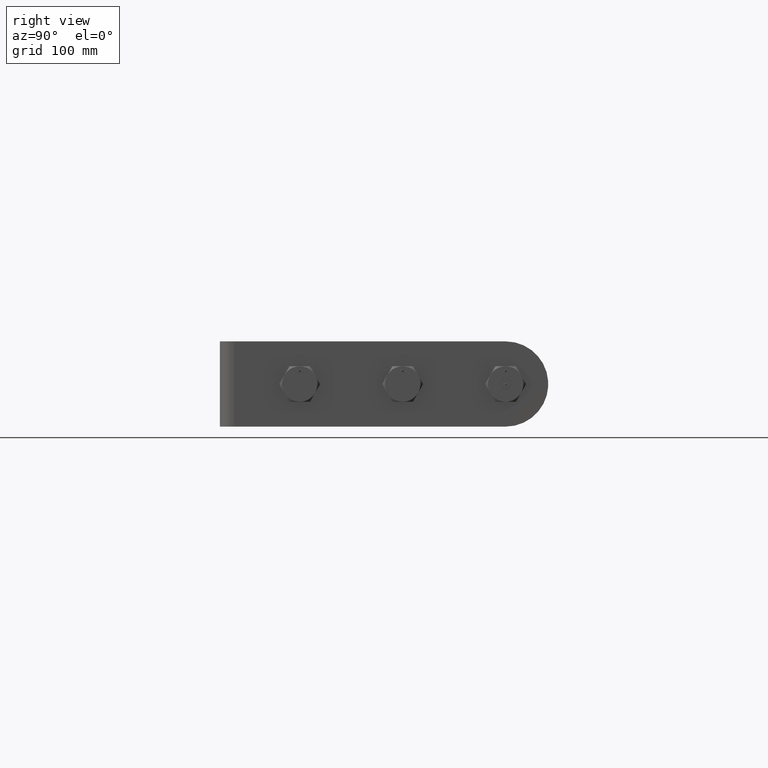
[diagram: clean part render]
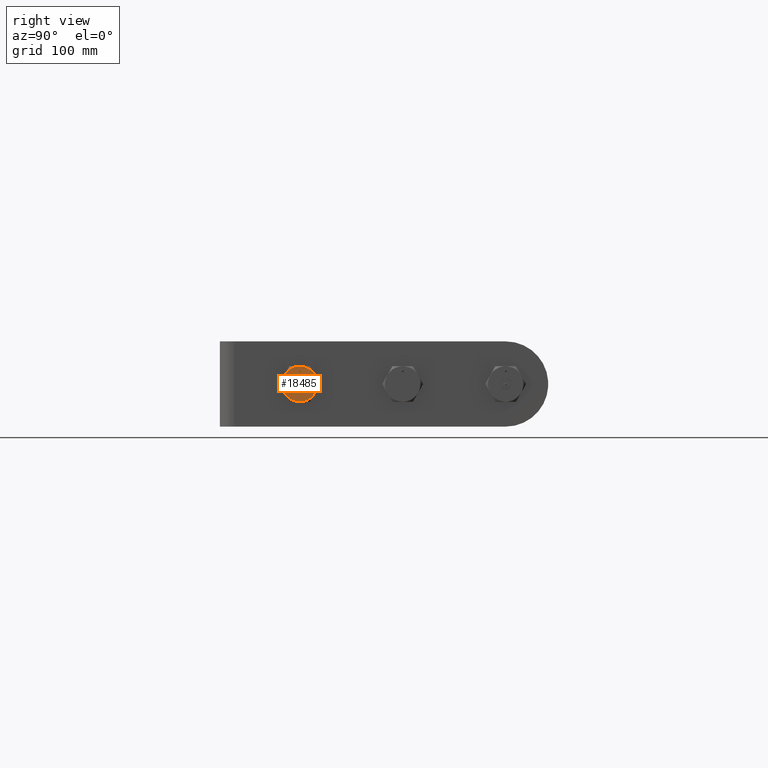
[diagram: same view with one face highlighted and labeled with its STEP entity id]
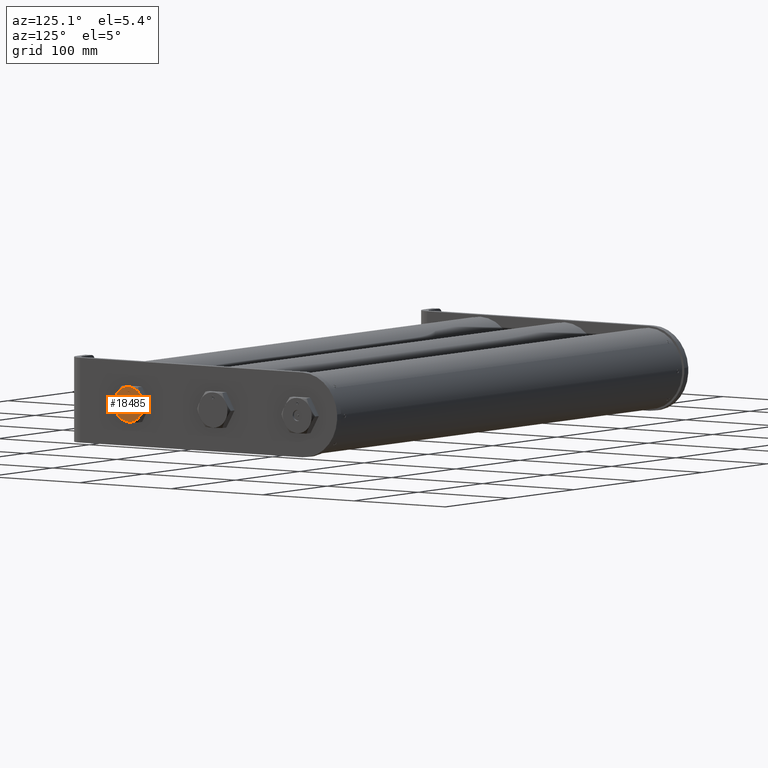
[diagram: same view with one face highlighted and labeled with its STEP entity id]
A machine part, right view. The second image highlights one B-rep face of the part: STEP entity #18485.
A second angle (auxiliary view) of the same face is appended — the face is thin or edge-on in the first view.
In plain terms, the highlighted planar face has unit normal (-1, 0, 0).
Its self-contained STEP definition (entity closure, byte-faithful):
#219 = ORIENTED_EDGE ( 'NONE', *, *, #16074, .T. ) ;
#585 = EDGE_LOOP ( 'NONE', ( #13293, #9260, #219, #3000, #5625, #1858 ) ) ;
#651 = CIRCLE ( 'NONE', #15552, 0.6250000000000000000 ) ;
#770 = DIRECTION ( 'NONE',  ( -0.000000000000000000, 0.000000000000000000, 1.000000000000000000 ) ) ;
#1094 = DIRECTION ( 'NONE',  ( 0.000000000000000000, -8.881784197001252323E-16, 1.000000000000000000 ) ) ;
#1303 = CIRCLE ( 'NONE', #15863, 0.6250000000000000000 ) ;
#1456 = ORIENTED_EDGE ( 'NONE', *, *, #16305, .F. ) ;
#1501 = EDGE_CURVE ( 'NONE', #14733, #9550, #651, .T. ) ;
#1718 = AXIS2_PLACEMENT_3D ( 'NONE', #18793, #7184, #14006 ) ;
#1858 = ORIENTED_EDGE ( 'NONE', *, *, #13213, .T. ) ;
#2078 = CARTESIAN_POINT ( 'NONE',  ( 0.000000000000000000, 0.5412658773652742061, -0.3125000000000000555 ) ) ;
#2349 = CARTESIAN_POINT ( 'NONE',  ( 0.000000000000000000, -0.3608439182434963755, 0.6249999999999994449 ) ) ;
#2796 = VERTEX_POINT ( 'NONE', #14610 ) ;
#3000 = ORIENTED_EDGE ( 'NONE', *, *, #1501, .T. ) ;
#3110 = EDGE_CURVE ( 'NONE', #2796, #17229, #13168, .T. ) ;
#3157 = CARTESIAN_POINT ( 'NONE',  ( 0.000000000000000000, 0.000000000000000000, 0.000000000000000000 ) ) ;
#3838 = DIRECTION ( 'NONE',  ( 0.000000000000000000, 0.000000000000000000, 1.000000000000000000 ) ) ;
#4006 = EDGE_LOOP ( 'NONE', ( #20431, #1456 ) ) ;
#4037 = FACE_OUTER_BOUND ( 'NONE', #585, .T. ) ;
#4270 = EDGE_CURVE ( 'NONE', #2796, #11896, #12348, .T. ) ;
#4869 = DIRECTION ( 'NONE',  ( 1.000000000000000000, 3.009265538105056020E-35, 1.203706215242022408E-35 ) ) ;
#5305 = CARTESIAN_POINT ( 'NONE',  ( 0.000000000000000000, 0.000000000000000000, 0.000000000000000000 ) ) ;
#5625 = ORIENTED_EDGE ( 'NONE', *, *, #5739, .T. ) ;
#5739 = EDGE_CURVE ( 'NONE', #9550, #18775, #19357, .T. ) ;
#7094 = FACE_BOUND ( 'NONE', #4006, .T. ) ;
#7184 = DIRECTION ( 'NONE',  ( 1.000000000000000000, -0.000000000000000000, 0.000000000000000000 ) ) ;
#7196 = CARTESIAN_POINT ( 'NONE',  ( 0.000000000000000000, 0.000000000000000000, 0.000000000000000000 ) ) ;
#7599 = DIRECTION ( 'NONE',  ( 0.000000000000000000, 1.776356839400250465E-15, 1.000000000000000000 ) ) ;
#7704 = CARTESIAN_POINT ( 'NONE',  ( 0.000000000000000000, 0.000000000000000000, -0.6250000000000000000 ) ) ;
#8174 = DIRECTION ( 'NONE',  ( 1.000000000000000000, -0.000000000000000000, 0.000000000000000000 ) ) ;
#8279 = CARTESIAN_POINT ( 'NONE',  ( 0.000000000000000000, -0.5412658773652589961, 0.3124999999999912292 ) ) ;
#8575 = VERTEX_POINT ( 'NONE', #9057 ) ;
#8785 = DIRECTION ( 'NONE',  ( -1.000000000000000000, 0.000000000000000000, -0.000000000000000000 ) ) ;
#9057 = CARTESIAN_POINT ( 'NONE',  ( -7.613441811405790141E-37, -1.888459438973930618E-15, 0.5012499999997677147 ) ) ;
#9260 = ORIENTED_EDGE ( 'NONE', *, *, #4270, .T. ) ;
#9381 = CIRCLE ( 'NONE', #11432, 0.06325000000000000067 ) ;
#9550 = VERTEX_POINT ( 'NONE', #7704 ) ;
#10191 = CARTESIAN_POINT ( 'NONE',  ( 0.000000000000000000, -0.5412658773652742061, -0.3125000000000000000 ) ) ;
#10368 = DIRECTION ( 'NONE',  ( 1.000000000000000000, -0.000000000000000000, 0.000000000000000000 ) ) ;
#10369 = DIRECTION ( 'NONE',  ( 1.000000000000000000, 3.009265538105056020E-35, 1.203706215242022408E-35 ) ) ;
#10402 = VERTEX_POINT ( 'NONE', #10815 ) ;
#10815 = CARTESIAN_POINT ( 'NONE',  ( -7.613441811405788471E-37, -1.896205329978537613E-15, 0.3747499999997676579 ) ) ;
#11383 = CARTESIAN_POINT ( 'NONE',  ( 0.000000000000000000, 0.5412658773652740951, 0.3125000000000000555 ) ) ;
#11432 = AXIS2_PLACEMENT_3D ( 'NONE', #18159, #4869, #11654 ) ;
#11654 = DIRECTION ( 'NONE',  ( -1.203706215242021874E-35, 0.000000000000000000, -1.000000000000000000 ) ) ;
#11788 = DIRECTION ( 'NONE',  ( -1.000000000000000000, -0.000000000000000000, -0.000000000000000000 ) ) ;
#11879 = DIRECTION ( 'NONE',  ( 1.000000000000000000, -0.000000000000000000, 0.000000000000000000 ) ) ;
#11896 = VERTEX_POINT ( 'NONE', #8279 ) ;
#11990 = CARTESIAN_POINT ( 'NONE',  ( 0.000000000000000000, -1.896205329978537613E-15, 0.4379999999997676863 ) ) ;
#11996 = AXIS2_PLACEMENT_3D ( 'NONE', #12100, #10368, #3838 ) ;
#12100 = CARTESIAN_POINT ( 'NONE',  ( 0.000000000000000000, 0.000000000000000000, 0.000000000000000000 ) ) ;
#12348 = CIRCLE ( 'NONE', #11996, 0.6250000000000000000 ) ;
#12886 = CIRCLE ( 'NONE', #13909, 0.6250000000000000000 ) ;
#13065 = DIRECTION ( 'NONE',  ( 0.000000000000000000, 0.000000000000000000, 1.000000000000000000 ) ) ;
#13168 = CIRCLE ( 'NONE', #15233, 0.6250000000000000000 ) ;
#13213 = EDGE_CURVE ( 'NONE', #18775, #17229, #1303, .T. ) ;
#13293 = ORIENTED_EDGE ( 'NONE', *, *, #3110, .F. ) ;
#13909 = AXIS2_PLACEMENT_3D ( 'NONE', #5305, #8174, #16556 ) ;
#14006 = DIRECTION ( 'NONE',  ( 0.000000000000000000, 0.000000000000000000, 1.000000000000000000 ) ) ;
#14610 = CARTESIAN_POINT ( 'NONE',  ( 0.000000000000000000, 0.000000000000000000, 0.6250000000000000000 ) ) ;
#14733 = VERTEX_POINT ( 'NONE', #10191 ) ;
#14766 = CARTESIAN_POINT ( 'NONE',  ( 0.000000000000000000, 0.000000000000000000, 0.000000000000000000 ) ) ;
#14916 = CIRCLE ( 'NONE', #16588, 0.06325000000000000067 ) ;
#15233 = AXIS2_PLACEMENT_3D ( 'NONE', #14766, #11788, #13065 ) ;
#15552 = AXIS2_PLACEMENT_3D ( 'NONE', #7196, #11879, #7599 ) ;
#15863 = AXIS2_PLACEMENT_3D ( 'NONE', #3157, #16080, #1094 ) ;
#16074 = EDGE_CURVE ( 'NONE', #11896, #14733, #12886, .T. ) ;
#16080 = DIRECTION ( 'NONE',  ( 1.000000000000000000, -0.000000000000000000, 0.000000000000000000 ) ) ;
#16305 = EDGE_CURVE ( 'NONE', #8575, #10402, #14916, .T. ) ;
#16556 = DIRECTION ( 'NONE',  ( 0.000000000000000000, 0.000000000000000000, 1.000000000000000000 ) ) ;
#16588 = AXIS2_PLACEMENT_3D ( 'NONE', #11990, #10369, #16879 ) ;
#16879 = DIRECTION ( 'NONE',  ( -1.203706215242021874E-35, 0.000000000000000000, -1.000000000000000000 ) ) ;
#16979 = PLANE ( 'NONE',  #18180 ) ;
#17229 = VERTEX_POINT ( 'NONE', #11383 ) ;
#18159 = CARTESIAN_POINT ( 'NONE',  ( 0.000000000000000000, -1.896205329978537613E-15, 0.4379999999997676863 ) ) ;
#18180 = AXIS2_PLACEMENT_3D ( 'NONE', #2349, #8785, #770 ) ;
#18485 = ADVANCED_FACE ( 'Face3', ( #7094, #4037 ), #16979, .F. ) ;
#18775 = VERTEX_POINT ( 'NONE', #2078 ) ;
#18793 = CARTESIAN_POINT ( 'NONE',  ( 0.000000000000000000, 0.000000000000000000, 0.000000000000000000 ) ) ;
#19357 = CIRCLE ( 'NONE', #1718, 0.6250000000000000000 ) ;
#19735 = EDGE_CURVE ( 'NONE', #10402, #8575, #9381, .T. ) ;
#20431 = ORIENTED_EDGE ( 'NONE', *, *, #19735, .F. ) ;